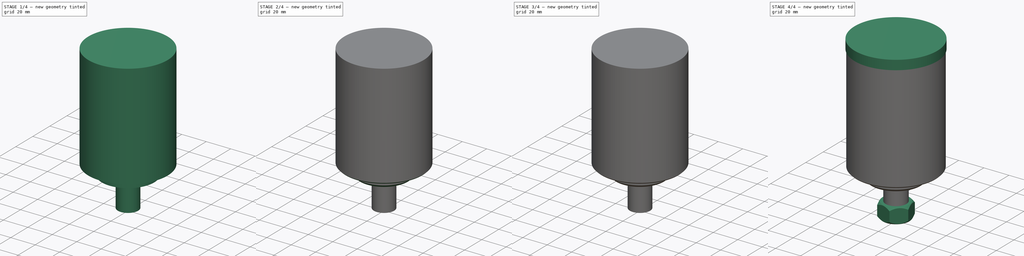
[diagram: build sequence overview — one tinted view per stage of 4, left to right]
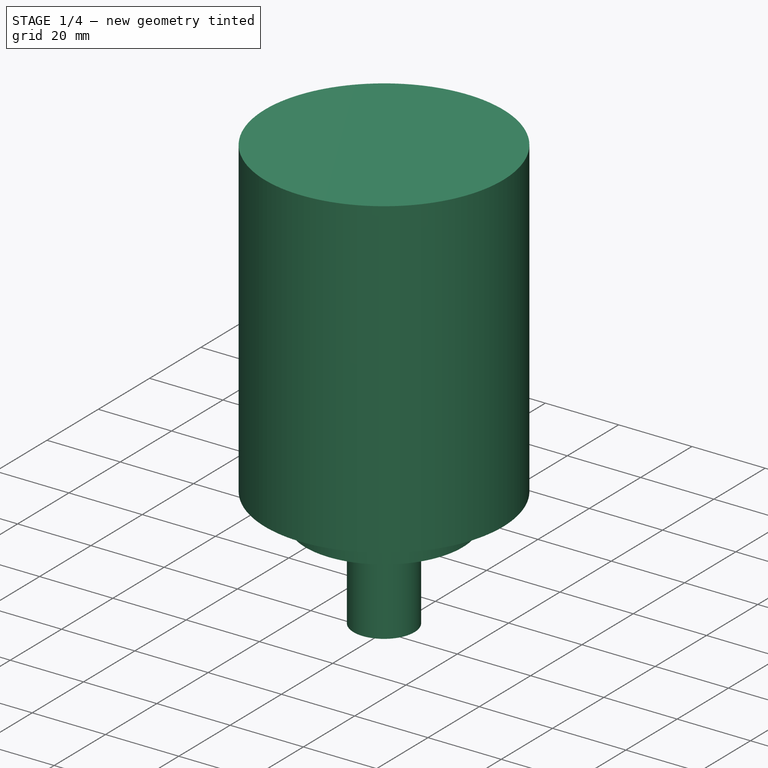
[diagram: stage 1 of 4 — iso view after this stage's code; geometry added in this stage tinted green]
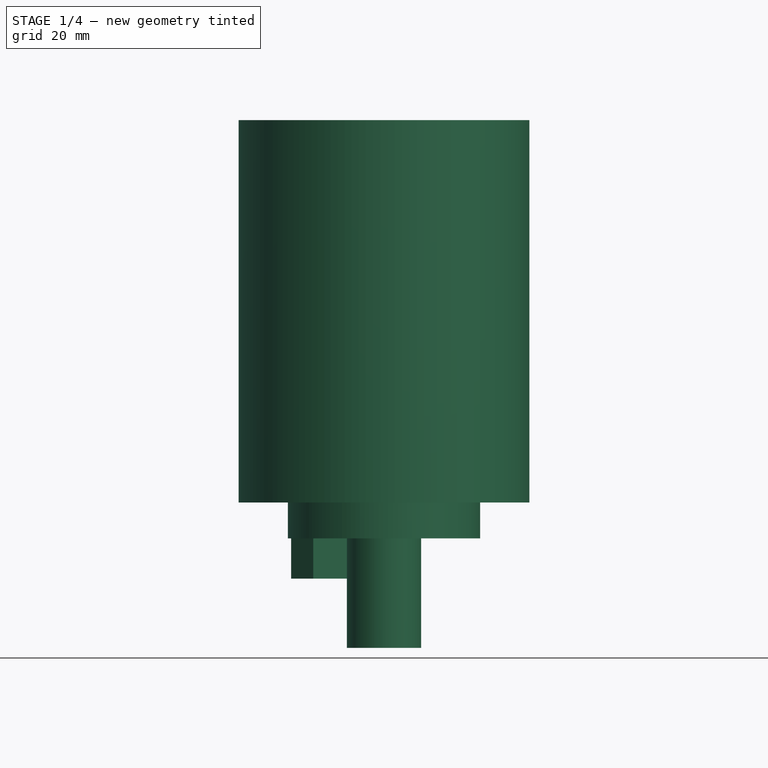
[diagram: stage 1 of 4 — front view after this stage's code; geometry added in this stage tinted green]
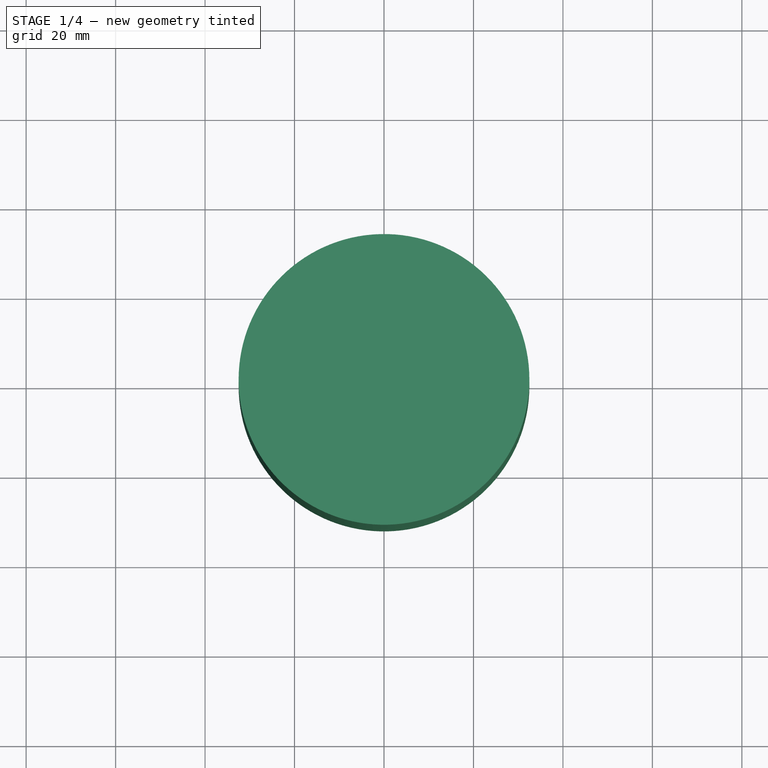
[diagram: stage 1 of 4 — top view after this stage's code; geometry added in this stage tinted green]
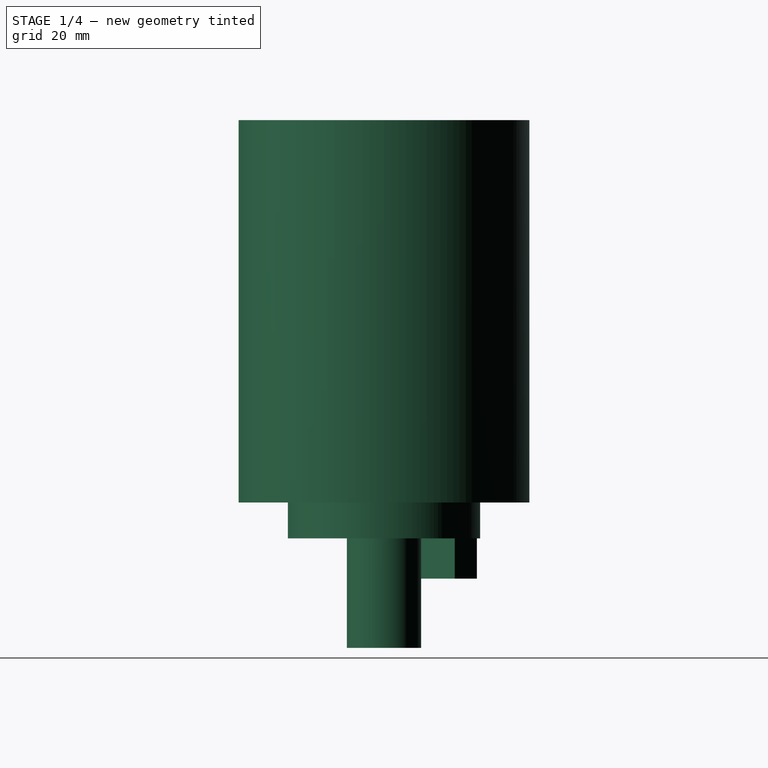
[diagram: stage 1 of 4 — right view after this stage's code; geometry added in this stage tinted green]
FCSTD DOCUMENT  (FreeCAD 2021.717R24301 +3842 (Git))
Label: Makita RT0701
License: Creative Commons Attribution
LicenseURL: http://creativecommons.org/licenses/by/4.0/
objects: Sketcher::SketchObject×10, PartDesign::Pad×8, PartDesign::Chamfer×3, PartDesign::Plane×2, PartDesign::Fillet×1, PartDesign::Pocket×1, PartDesign::Groove×1, PartDesign::Body×1
note: 55 computed .brp shape members not serialized (recipe doc carries the construction recipe); baked Part::Feature solids carry a one-line shape summary decoded from their .brp

FEATURE [Sketcher::SketchObject] Sketch
  FullyConstrained = true
  MapMode = 5
  Support = -> [XY_Plane]
  sketch-geometry (1):
    g0: Circle CenterX=0 CenterY=0 CenterZ=0 NormalX=0 NormalY=0 NormalZ=1 AngleXU=0 Radius=32.5
  constraints (2):
    c: Coincident(g0,g-1)
    c: Diameter(g0) = 65
FEATURE [PartDesign::Pad] Pad
  ClaimChildren = false
  Direction = (1,1,1)
  Fit = 0
  FitJoin = 0
  InnerFit = 0
  InnerFitJoin = 0
  InnerTaperAngle = 0
  InnerTaperAngleRev = 0
  Length = 85.5
  Length2 = 100
  Linearize = true
  NewSolid = false
  Profile = -> Sketch
  Refine = true
  Suppress = false
  Type = 0
  _ProfileBasedVersion = 1
FEATURE [Sketcher::SketchObject] Sketch001
  FullyConstrained = true
  MapMode = 5
  Placement = pos=(0,0,0) rot=(1,0,0;3.14159rad)
  Support = -> [Pad]
  sketch-geometry (1):
    g0: Circle CenterX=0 CenterY=0 CenterZ=0 NormalX=0 NormalY=0 NormalZ=1 AngleXU=0 Radius=21.5
  constraints (2):
    c: Coincident(g0,g-1)
    c: Diameter(g0) = 43
FEATURE [PartDesign::Pad] Pad001
  BaseFeature = -> Pad
  ClaimChildren = false
  Direction = (1,1,1)
  Fit = 0
  FitJoin = 0
  InnerFit = 0
  InnerFitJoin = 0
  InnerTaperAngle = 0
  InnerTaperAngleRev = 0
  Length = 8
  Length2 = 100
  Linearize = true
  NewSolid = false
  Profile = -> Sketch001
  Refine = true
  Suppress = false
  Type = 0
  _ProfileBasedVersion = 1
FEATURE [Sketcher::SketchObject] Sketch002
  FullyConstrained = true
  MapMode = 5
  Placement = pos=(0,0,-8) rot=(1,0,0;3.14159rad)
  Support = -> [Pad001]
  sketch-geometry (2):
    g0: Circle CenterX=0 CenterY=0 CenterZ=0 NormalX=0 NormalY=0 NormalZ=1 AngleXU=0 Radius=8.3
    g1: Circle CenterX=0 CenterY=0 CenterZ=0 NormalX=0 NormalY=0 NormalZ=1 AngleXU=0 Radius=3.175
  constraints (4):
    c: Coincident(g0,g-1)
    c: Diameter(g0) = 16.6
    c: Coincident(g1,g0)
    c: Diameter(g1) = 6.35
FEATURE [PartDesign::Pad] Pad002
  BaseFeature = -> Pad001
  ClaimChildren = false
  Direction = (1,1,1)
  Fit = 0
  FitJoin = 0
  InnerFit = 0
  InnerFitJoin = 0
  InnerTaperAngle = 0
  InnerTaperAngleRev = 0
  Length = 24.5
  Length2 = 100
  Linearize = true
  NewSolid = false
  Profile = -> Sketch002
  Refine = true
  Suppress = false
  Type = 0
  _ProfileBasedVersion = 1
FEATURE [Sketcher::SketchObject] Sketch003
  ExternalGeometry = -> [Pad002]
  FullyConstrained = false
  MapMode = 5
  Placement = pos=(0,0,0) rot=(1,0,0;3.14159rad)
  Support = -> [Pad002]
  sketch-geometry (6):
    g0: ArcOfCircle CenterX=0 CenterY=0 CenterZ=0 NormalX=0 NormalY=0 NormalZ=1 AngleXU=0 Radius=21.5 StartAngle=3.40339 EndAngle=4.45059
    g1: LineSegment StartX=-15.8177 StartY=-0.614862 StartZ=0 EndX=-0.614862 EndY=-15.8177 EndZ=0
    g2: LineSegment StartX=-0.614862 StartY=-15.8177 StartZ=0 EndX=-5.56461 EndY=-20.7674 EndZ=0
    g3: LineSegment StartX=-15.8177 StartY=-0.614862 StartZ=0 EndX=-20.7674 EndY=-5.56461 EndZ=0
    g4: LineSegment [constr] StartX=0 StartY=0 StartZ=0 EndX=-24.9637 EndY=-24.9637 EndZ=0
    g5: GeomPoint [constr] X=-8.21626 Y=-8.21626 Z=0
  constraints (16):
    c: Coincident(g0,g-3)
    c: Equal(g0,g-3)
    c: Coincident(g1,g2)
    c: Coincident(g1,g3)
    c: Parallel(g3,g2)
    c: Equal(g3,g2)
    c: Perpendicular(g1,g3)
    c: Coincident(g4,g0)
    c: Angle(g4,g-1) = 2.35619
    c: Parallel(g3,g4)
    c: Distance(g1) = 21.5
    c: Distance(g3) = 7
    c: PointOnObject(g5,g1)
    c: PointOnObject(g5,g4)
    c: Coincident(g0,g3)
    c: Coincident(g0,g2)
FEATURE [PartDesign::Pad] Pad003
  BaseFeature = -> Pad002
  ClaimChildren = false
  Direction = (1,1,1)
  Fit = 0
  FitJoin = 0
  InnerFit = 0
  InnerFitJoin = 0
  InnerTaperAngle = 0
  InnerTaperAngleRev = 0
  Length = 17
  Length2 = 100
  Linearize = true
  NewSolid = false
  Profile = -> Sketch003
  Refine = true
  Suppress = false
  Type = 0
  _ProfileBasedVersion = 1
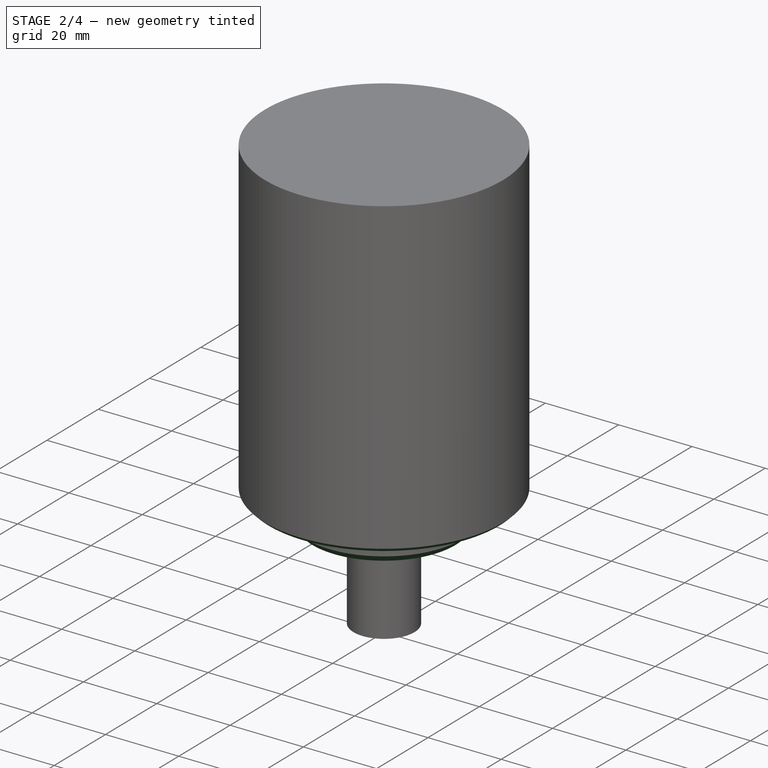
[diagram: stage 2 of 4 — iso view after this stage's code; geometry added in this stage tinted green]
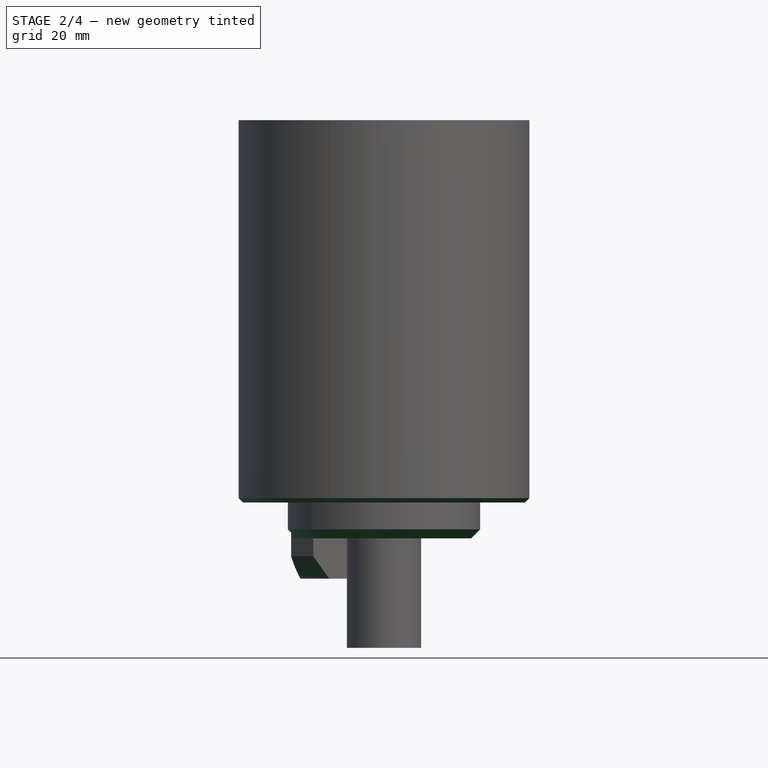
[diagram: stage 2 of 4 — front view after this stage's code; geometry added in this stage tinted green]
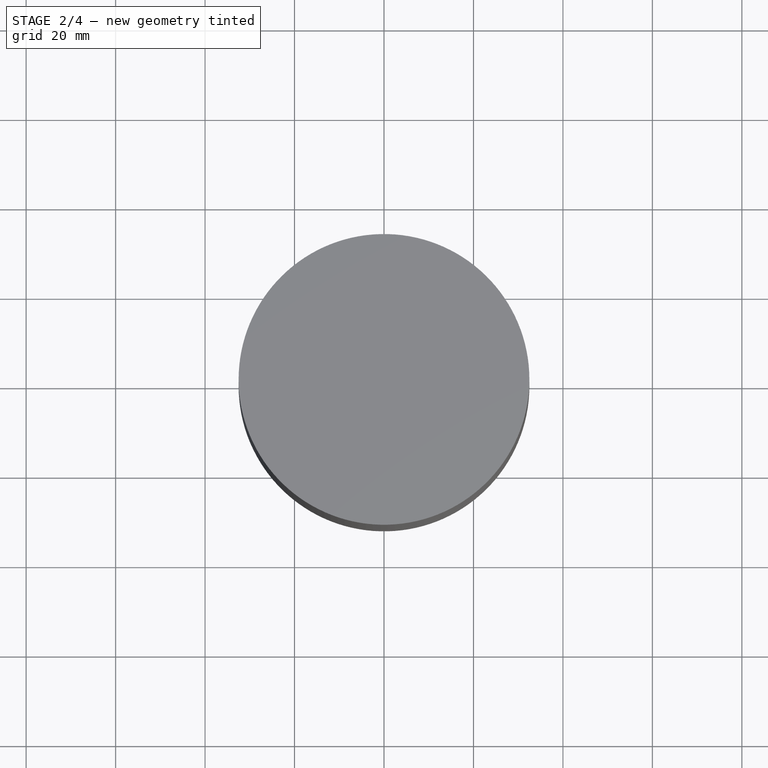
[diagram: stage 2 of 4 — top view after this stage's code; geometry added in this stage tinted green]
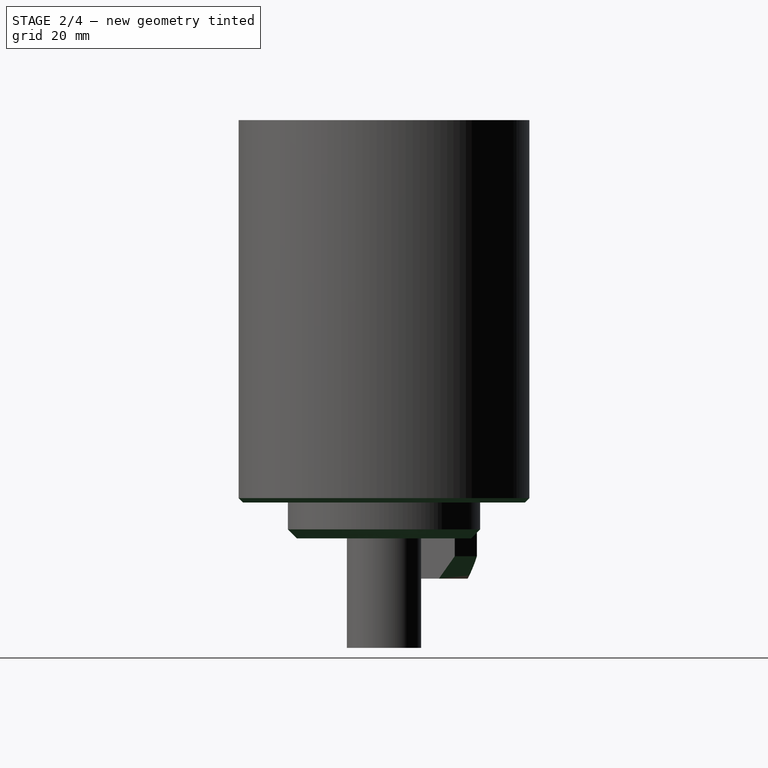
[diagram: stage 2 of 4 — right view after this stage's code; geometry added in this stage tinted green]
FEATURE [PartDesign::Chamfer] Chamfer
  Angle = 45
  Base = -> Pad003 [Edge1]
  BaseFeature = -> Pad003
  ChamferType = 0
  FlipDirection = false
  NewSolid = false
  Refine = true
  Size = 2
  Size2 = 1
  SupportTransform = false
  Suppress = false
FEATURE [PartDesign::Chamfer] Chamfer001
  Angle = 45
  Base = -> Chamfer [Edge19,Edge10]
  BaseFeature = -> Chamfer
  ChamferType = 0
  FlipDirection = false
  NewSolid = false
  Refine = true
  Size = 5
  Size2 = 1
  SupportTransform = false
  Suppress = false
FEATURE [PartDesign::Chamfer] Chamfer002
  Angle = 45
  Base = -> Chamfer001 [Edge34]
  BaseFeature = -> Chamfer001
  ChamferType = 0
  FlipDirection = false
  NewSolid = false
  Refine = true
  Size = 1
  Size2 = 1
  SupportTransform = false
  Suppress = false
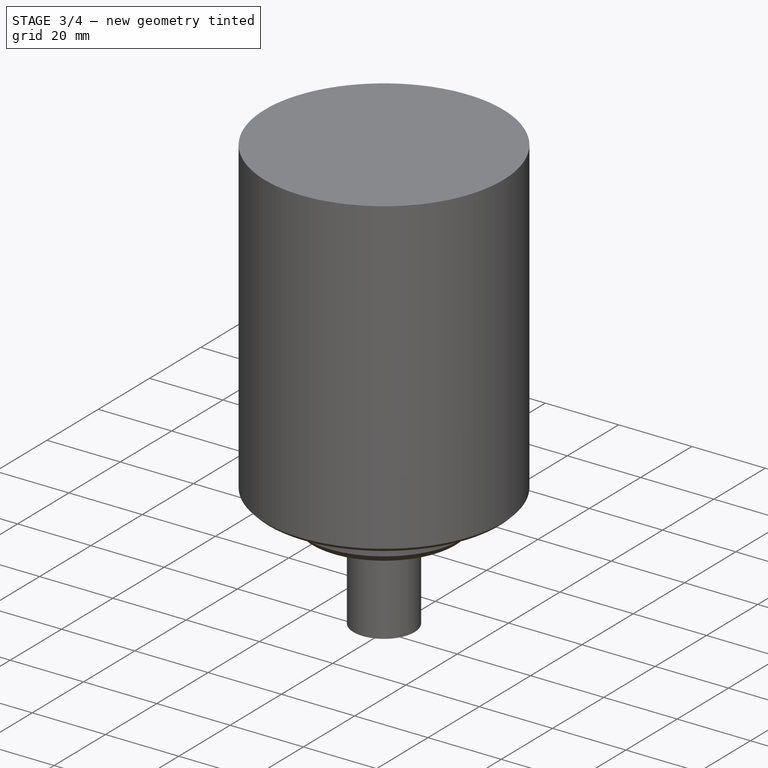
[diagram: stage 3 of 4 — iso view after this stage's code; geometry added in this stage tinted green]
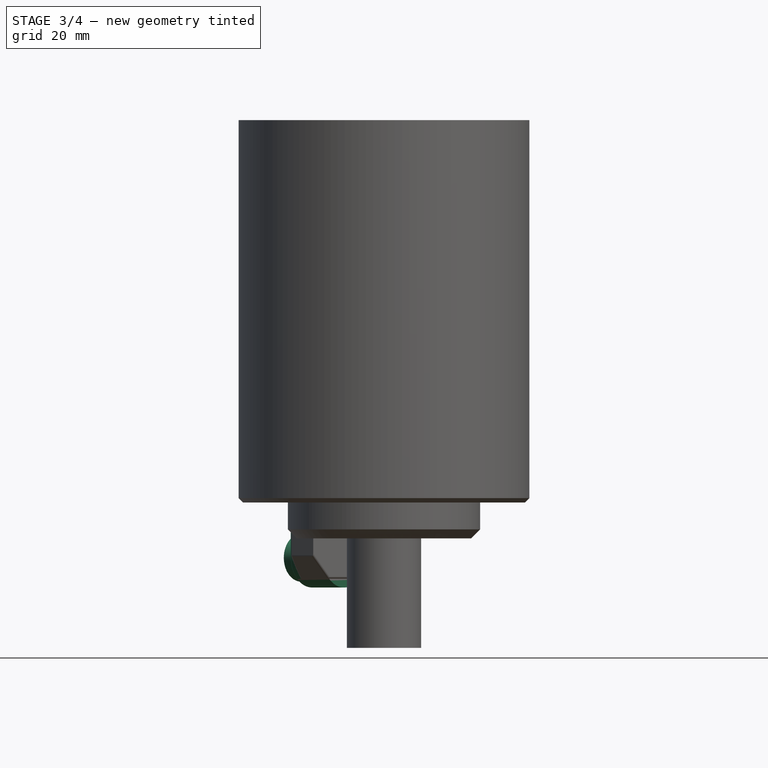
[diagram: stage 3 of 4 — front view after this stage's code; geometry added in this stage tinted green]
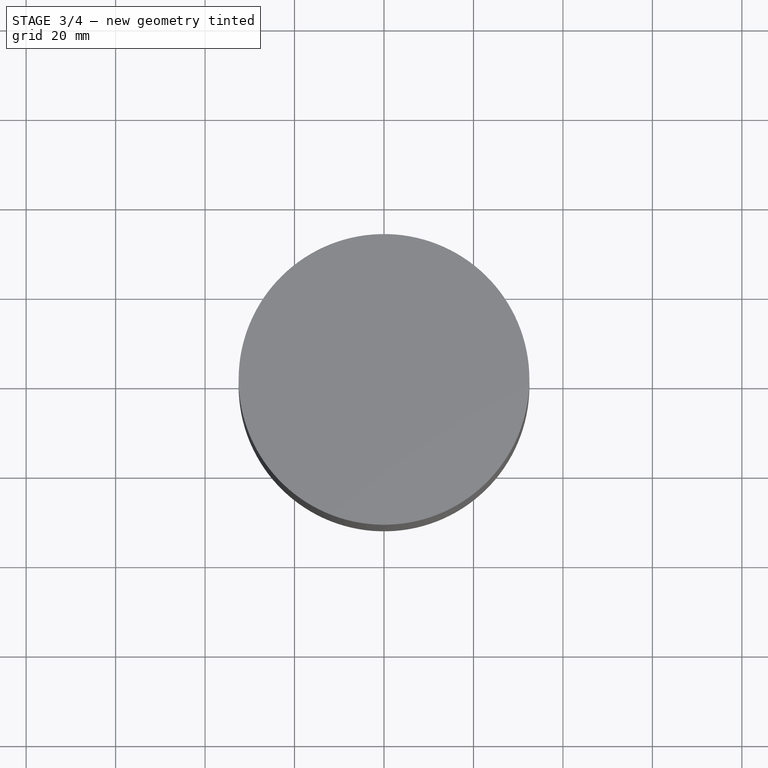
[diagram: stage 3 of 4 — top view after this stage's code; geometry added in this stage tinted green]
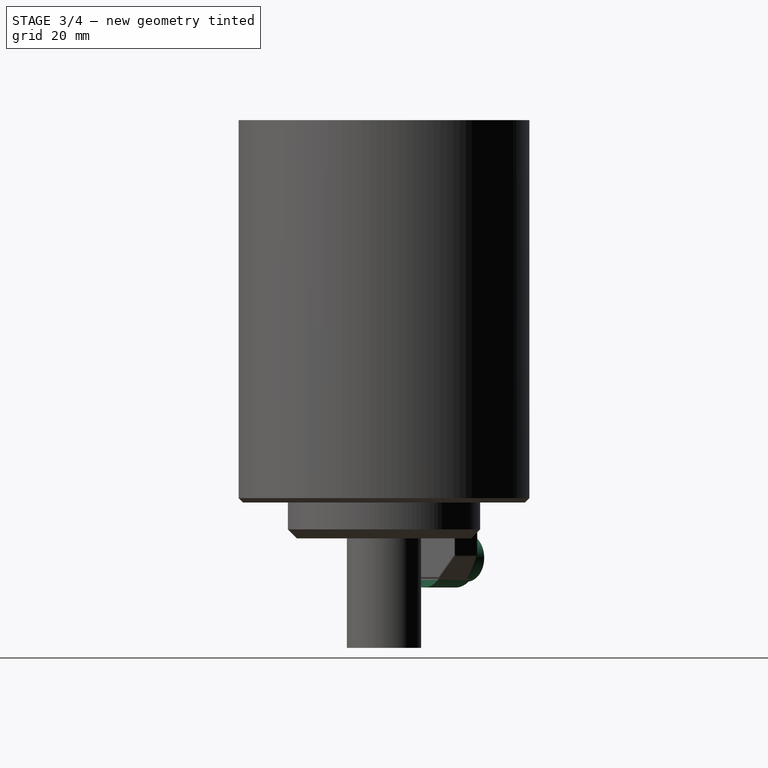
[diagram: stage 3 of 4 — right view after this stage's code; geometry added in this stage tinted green]
FEATURE [PartDesign::Plane] DatumPlane
  AttachmentOffset = pos=(0,0,-1) rot=(0,0,1;0rad)
  Length = 91.8866
  MapMode = 5
  MinimumLength = 10
  MinimumWidth = 10
  Placement = pos=(-8.92337,8.92337,0) rot=(0.862856,0.357407,0.357407;1.71777rad)
  ResizeMode = 0
  Support = -> [Chamfer002]
  Width = 118
FEATURE [Sketcher::SketchObject] Sketch004
  FullyConstrained = true
  MapMode = 5
  Placement = pos=(-8.92337,8.92337,0) rot=(-0.281085,0.678598,0.678598;3.68962rad)
  Support = -> [DatumPlane]
  sketch-geometry (4):
    g0: ArcOfCircle CenterX=0 CenterY=-12.35 CenterZ=0 NormalX=0 NormalY=0 NormalZ=1 AngleXU=0 Radius=6.65 StartAngle=3.14159 EndAngle=6.28319
    g1: LineSegment StartX=-6.65 StartY=-12.35 StartZ=0 EndX=-6.65 EndY=0 EndZ=0
    g2: LineSegment StartX=-6.65 StartY=0 StartZ=0 EndX=6.65 EndY=0 EndZ=0
    g3: LineSegment StartX=6.65 StartY=0 StartZ=0 EndX=6.65 EndY=-12.35 EndZ=0
  constraints (11):
    c: PointOnObject(g0,g-2)
    c: Vertical(g1)
    c: Coincident(g2,g1)
    c: Horizontal(g2)
    c: Coincident(g3,g2)
    c: Vertical(g3)
    c: Tangent(g0,g3) = 1.5708
    c: Tangent(g0,g1) = 1.5708
    c: Diameter(g0) = 13.3
    c: DistanceY(g0,g-1) = 12.35
    c: Horizontal(g2,g-1)
FEATURE [PartDesign::Pad] Pad004
  BaseFeature = -> Chamfer002
  ClaimChildren = false
  Direction = (1,1,1)
  Fit = 0
  FitJoin = 0
  InnerFit = 0
  InnerFitJoin = 0
  InnerTaperAngle = 0
  InnerTaperAngleRev = 0
  Length = 10.5
  Length2 = 100
  Linearize = true
  NewSolid = false
  Profile = -> Sketch004
  Refine = true
  Suppress = false
  Type = 0
  _ProfileBasedVersion = 1
FEATURE [Sketcher::SketchObject] Sketch005
  ExternalGeometry = -> [Pad004]
  FullyConstrained = true
  MapMode = 5
  Placement = pos=(-16.348,16.348,4.4e-15) rot=(-0.281085,0.678598,0.678598;3.68962rad)
  Support = -> [Pad004]
  sketch-geometry (1):
    g0: Circle CenterX=1e-14 CenterY=-12.35 CenterZ=0 NormalX=0 NormalY=0 NormalZ=1 AngleXU=0 Radius=5.35
  constraints (2):
    c: Coincident(g0,g-3)
    c: Diameter(g0) = 10.7
FEATURE [PartDesign::Pad] Pad005
  BaseFeature = -> Pad004
  ClaimChildren = false
  Direction = (1,1,1)
  Fit = 0
  FitJoin = 0
  InnerFit = 0
  InnerFitJoin = 0
  InnerTaperAngle = 0
  InnerTaperAngleRev = 0
  Length = 3.5
  Length2 = 100
  Linearize = true
  NewSolid = false
  Profile = -> Sketch005
  Refine = true
  Suppress = false
  Type = 0
  _ProfileBasedVersion = 1
FEATURE [PartDesign::Fillet] Fillet
  Base = -> Pad005 [Edge55,Edge47,Edge19,Edge20,Edge18,Edge35,Edge9,Edge7,Edge3,Edge1,Edge2,Edge4,Edge11]
  BaseFeature = -> Pad005
  NewSolid = false
  Radius = 0.5
  Refine = true
  SupportTransform = false
  Suppress = false
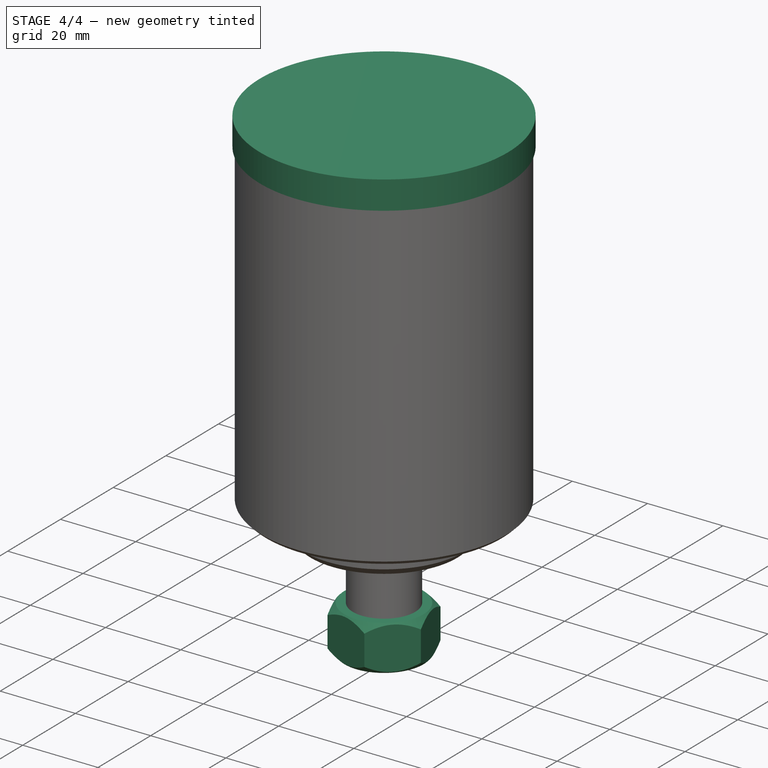
[diagram: stage 4 of 4 — iso view after this stage's code; geometry added in this stage tinted green]
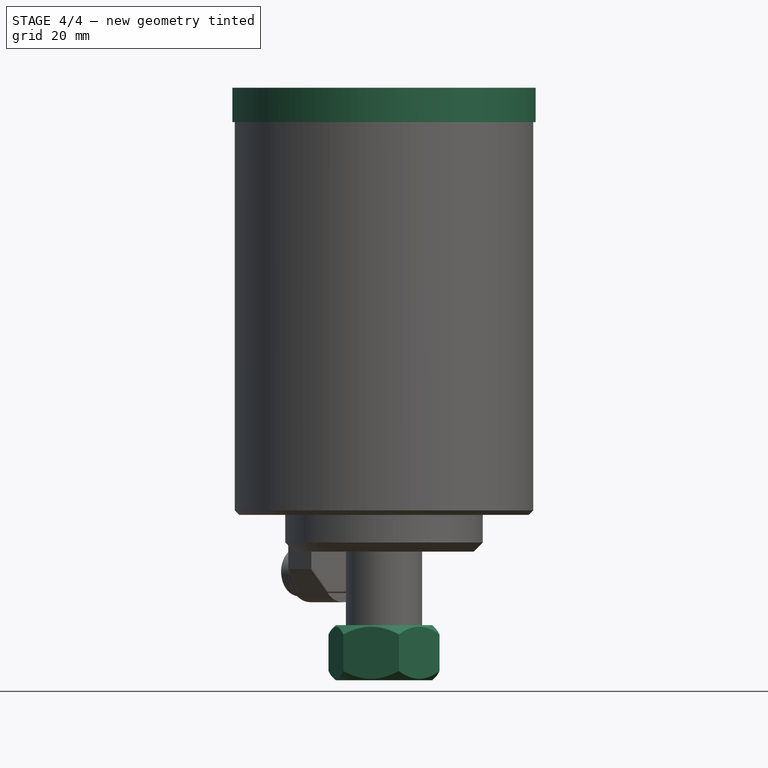
[diagram: stage 4 of 4 — front view after this stage's code; geometry added in this stage tinted green]
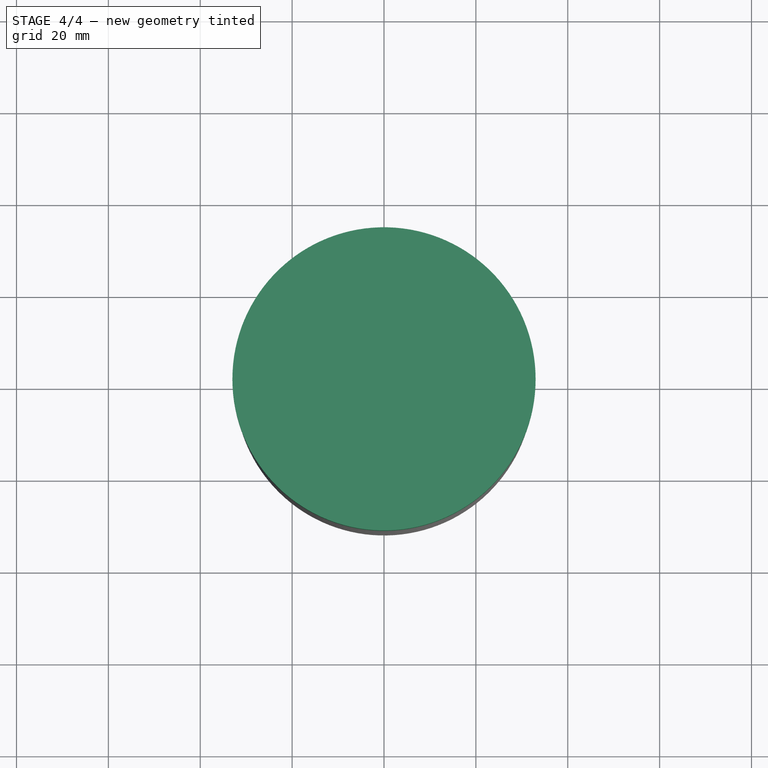
[diagram: stage 4 of 4 — top view after this stage's code; geometry added in this stage tinted green]
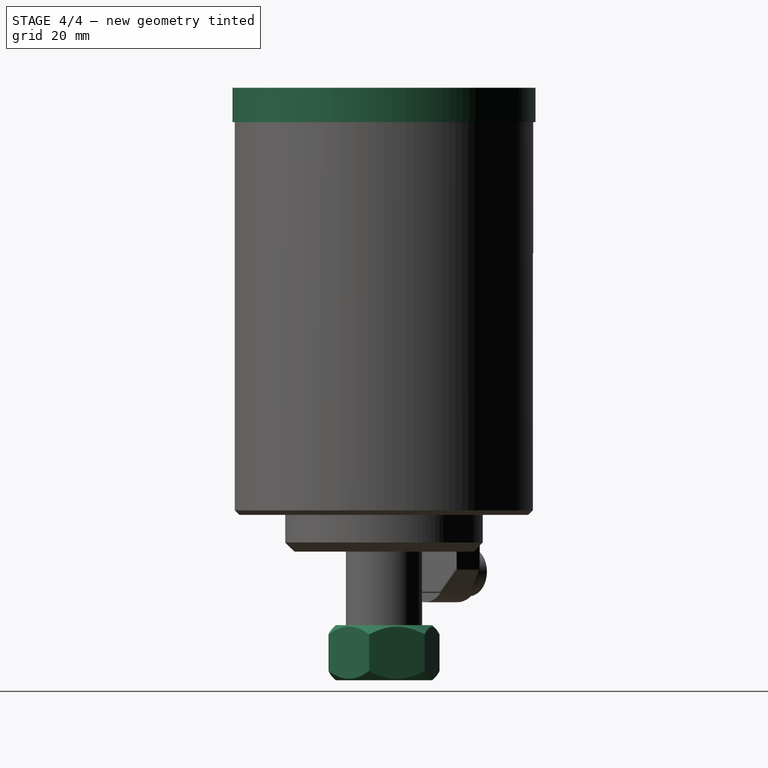
[diagram: stage 4 of 4 — right view after this stage's code; geometry added in this stage tinted green]
FEATURE [Sketcher::SketchObject] Sketch006
  ExternalGeometry = -> [Fillet]
  FullyConstrained = true
  MapMode = 5
  Placement = pos=(0,0,0) rot=(1,0,0;3.14159rad)
  Support = -> [Fillet]
  sketch-geometry (4):
    g0: LineSegment StartX=2.35 StartY=-32.4149 StartZ=0 EndX=2.35 EndY=-30.9149 EndZ=0
    g1: LineSegment StartX=2.35 StartY=-30.9149 StartZ=0 EndX=-2.35 EndY=-30.9149 EndZ=0
    g2: LineSegment StartX=-2.35 StartY=-30.9149 StartZ=0 EndX=-2.35 EndY=-32.4149 EndZ=0
    g3: ArcOfCircle CenterX=0 CenterY=0 CenterZ=0 NormalX=0 NormalY=0 NormalZ=1 AngleXU=0 Radius=32.5 StartAngle=4.64002 EndAngle=4.78476
  constraints (11):
    c: Coincident(g0,g1)
    c: Coincident(g1,g2)
    c: Vertical(g0)
    c: Vertical(g2)
    c: Coincident(g3,g-3)
    c: Equal(g3,g-3)
    c: Coincident(g0,g3)
    c: Coincident(g3,g2)
    c: DistanceX(g1,g1) = 4.7
    c: Symmetric(g0,g1,g-2)
    c: DistanceY(g0,g0) = 1.5
FEATURE [PartDesign::Pocket] Pocket
  BaseFeature = -> Fillet
  ClaimChildren = false
  Fit = 0
  FitJoin = 0
  InnerFit = 0
  InnerFitJoin = 0
  InnerTaperAngle = 0
  InnerTaperAngleRev = 0
  Length = 57
  Length2 = 100
  Linearize = true
  NewSolid = false
  Profile = -> Sketch006
  Refine = true
  Suppress = false
  Type = 0
  _ProfileBasedVersion = 1
FEATURE [Sketcher::SketchObject] Sketch007
  FullyConstrained = true
  MapMode = 5
  Placement = pos=(0,0,85.5) rot=(0,0,1;0rad)
  Support = -> [Pocket]
  sketch-geometry (1):
    g0: Circle CenterX=0 CenterY=0 CenterZ=0 NormalX=0 NormalY=0 NormalZ=1 AngleXU=0 Radius=33
  constraints (2):
    c: Coincident(g0,g-1)
    c: Diameter(g0) = 66
FEATURE [PartDesign::Pad] Pad006
  BaseFeature = -> Pocket
  ClaimChildren = false
  Direction = (1,1,1)
  Fit = 0
  FitJoin = 0
  InnerFit = 0
  InnerFitJoin = 0
  InnerTaperAngle = 0
  InnerTaperAngleRev = 0
  Length = 7.5
  Length2 = 100
  Linearize = true
  NewSolid = false
  Profile = -> Sketch007
  Refine = true
  Suppress = false
  Type = 0
  _ProfileBasedVersion = 1
FEATURE [PartDesign::Plane] DatumPlane001
  AttachmentOffset = pos=(0,0,3.5) rot=(0,0,1;0rad)
  Length = 66
  MapMode = 5
  MinimumLength = 10
  MinimumWidth = 10
  Placement = pos=(0,0,-36) rot=(1,0,0;3.14159rad)
  ResizeMode = 0
  Support = -> [Pad006]
  Width = 65.7746
FEATURE [Sketcher::SketchObject] Sketch008
  FullyConstrained = true
  MapMode = 5
  Placement = pos=(0,0,-36) rot=(1,0,0;3.14159rad)
  Support = -> [DatumPlane001]
  sketch-geometry (8):
    g0: Circle CenterX=0 CenterY=0 CenterZ=0 NormalX=0 NormalY=0 NormalZ=1 AngleXU=0 Radius=5
    g1: LineSegment StartX=8.83883 StartY=-8.83883 StartZ=0 EndX=12.0741 EndY=3.23524 EndZ=0
    g2: LineSegment StartX=12.0741 StartY=3.23524 StartZ=0 EndX=3.23524 EndY=12.0741 EndZ=0
    g3: LineSegment StartX=3.23524 StartY=12.0741 StartZ=0 EndX=-8.83883 EndY=8.83883 EndZ=0
    g4: LineSegment StartX=-8.83883 StartY=8.83883 StartZ=0 EndX=-12.0741 EndY=-3.23524 EndZ=0
    g5: LineSegment StartX=-12.0741 StartY=-3.23524 StartZ=0 EndX=-3.23524 EndY=-12.0741 EndZ=0
    g6: LineSegment StartX=-3.23524 StartY=-12.0741 StartZ=0 EndX=8.83883 EndY=-8.83883 EndZ=0
    g7: Circle [constr] CenterX=0 CenterY=0 CenterZ=0 NormalX=0 NormalY=0 NormalZ=1 AngleXU=0 Radius=12.5
  constraints (18):
    c: Coincident(g0,g-1)
    c: Diameter(g0) = 10
    c: Coincident(g1,g2)
    c: Coincident(g2,g3)
    c: Coincident(g3,g4)
    c: Coincident(g4,g5)
    c: Coincident(g5,g6)
    c: Coincident(g6,g1)
    c: Equal(g1, g2-g6) x5
    c: PointOnObject(g1,g7)
    c: PointOnObject(g2,g7)
    c: PointOnObject(g3,g7)
    c: PointOnObject(g4,g7)
    c: PointOnObject(g5,g7)
    c: PointOnObject(g6,g7)
    c: Coincident(g7,g0)
    c: Angle(g5,g-1) = 0.785398
    c: Diameter(g7) = 25
FEATURE [PartDesign::Pad] Pad007
  BaseFeature = -> Pad006
  ClaimChildren = false
  Direction = (1,1,1)
  Fit = 0
  FitJoin = 0
  InnerFit = 0
  InnerFitJoin = 0
  InnerTaperAngle = 0
  InnerTaperAngleRev = 0
  Length = 12
  Length2 = 100
  Linearize = true
  NewSolid = false
  Profile = -> Sketch008
  Refine = true
  Reversed = true
  Suppress = false
  Type = 0
  _ProfileBasedVersion = 1
FEATURE [Sketcher::SketchObject] Sketch009
  ExternalGeometry = -> [Pad007]
  FullyConstrained = true
  MapMode = 5
  Placement = pos=(0,0,0) rot=(0.57735,0.57735,0.57735;2.0944rad)
  Support = -> [YZ_Plane]
  sketch-geometry (6):
    g0: LineSegment StartX=-15 StartY=-28.5 StartZ=0 EndX=-9 EndY=-22.5 EndZ=0
    g1: LineSegment StartX=-9 StartY=-22.5 StartZ=0 EndX=-19 EndY=-22.5 EndZ=0
    g2: LineSegment StartX=-19 StartY=-22.5 StartZ=0 EndX=-19 EndY=-37.5 EndZ=0
    g3: LineSegment StartX=-19 StartY=-37.5 StartZ=0 EndX=-9 EndY=-37.5 EndZ=0
    g4: LineSegment StartX=-9 StartY=-37.5 StartZ=0 EndX=-15 EndY=-31.5 EndZ=0
    g5: LineSegment StartX=-15 StartY=-31.5 StartZ=0 EndX=-15 EndY=-28.5 EndZ=0
  constraints (18):
    c: Horizontal(g1)
    c: Coincident(g1,g2)
    c: Coincident(g2,g3)
    c: Horizontal(g3)
    c: Coincident(g3,g4)
    c: Coincident(g4,g5)
    c: Coincident(g5,g0)
    c: Vertical(g5)
    c: Coincident(g0,g1)
    c: Angle(g1,g0) = 0.785398
    c: Angle(g4,g3) = 0.785398
    c: DistanceY(g3,g-3) = 1.5
    c: DistanceY(g-3,g0) = 1.5
    c: DistanceX(g1,g1) = 10
    c: Vertical(g2)
    c: Vertical(g3,g0)
    c: DistanceX(g3,g-1) = 9
    c: DistanceY(g5,g5) = 3
FEATURE [PartDesign::Groove] Groove
  Angle = 360
  Axis = (-3e-16,3e-16,1)
  Base = (0,0,0)
  BaseFeature = -> Pad007
  ClaimChildren = false
  Fit = 0
  FitJoin = 0
  InnerFit = 0
  InnerFitJoin = 0
  NewSolid = false
  Profile = -> Sketch009
  ReferenceAxis = -> Z_Axis
  Refine = true
  Reversed = true
  Suppress = false
  _ProfileBasedVersion = 1
FEATURE [PartDesign::Body] Body
  AutoGroupSolids = false
  ExportMode = 0
  Group = -> [Sketch,Pad,Sketch001,Pad001,Sketch002,Pad002,Sketch003,Pad003,Chamfer,Chamfer001,Chamfer002,DatumPlane,Sketch004,Pad004,Sketch005,Pad005,Fillet,Sketch006,Pocket,Sketch007,Pad006,DatumPlane001,Sketch008,Pad007,Sketch009,Groove]
  Origin = -> Origin
  Tip = -> Groove
  _ExportChildren = -> [Pad,Pad001,Pad002,Pad003,Chamfer,Chamfer001,Chamfer002,DatumPlane,Pad004,Pad005,Fillet,Pocket,Pad006,DatumPlane001,Pad007,Groove]
  _GroupVersion = 1
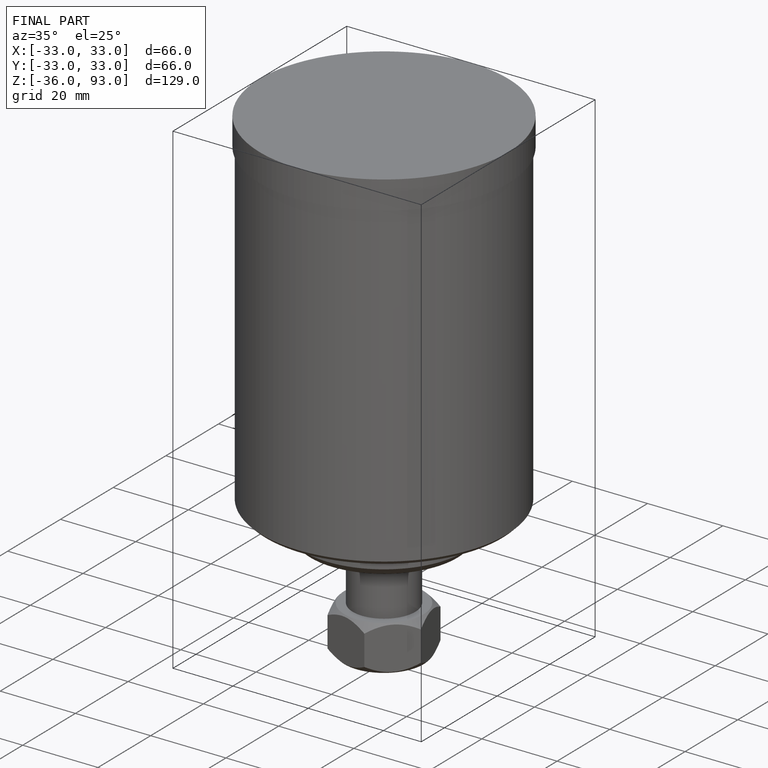
[diagram: finished part — iso view with bounding-box wireframe]
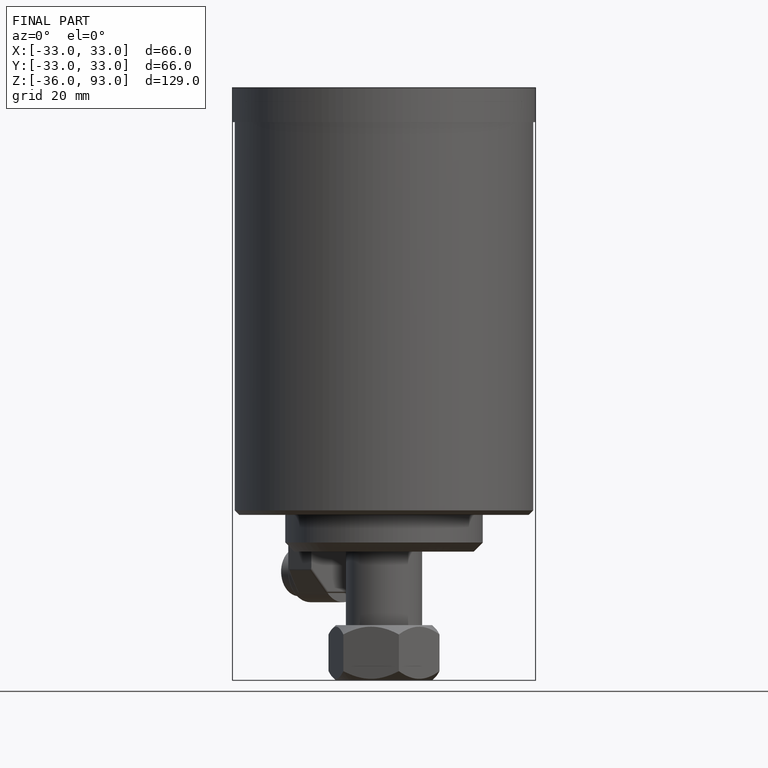
[diagram: finished part — front view with bounding-box wireframe]
